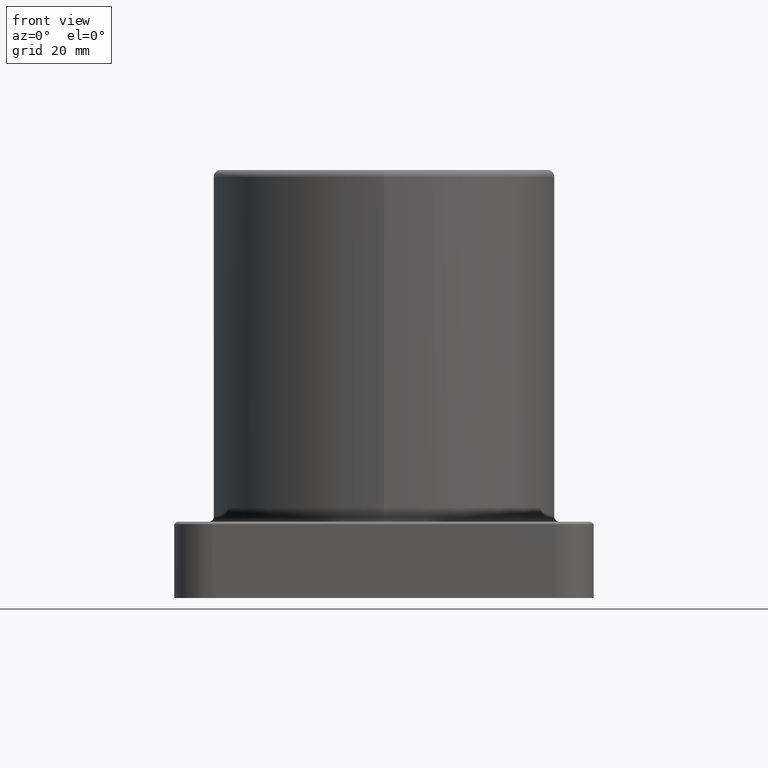
[diagram: clean part render]
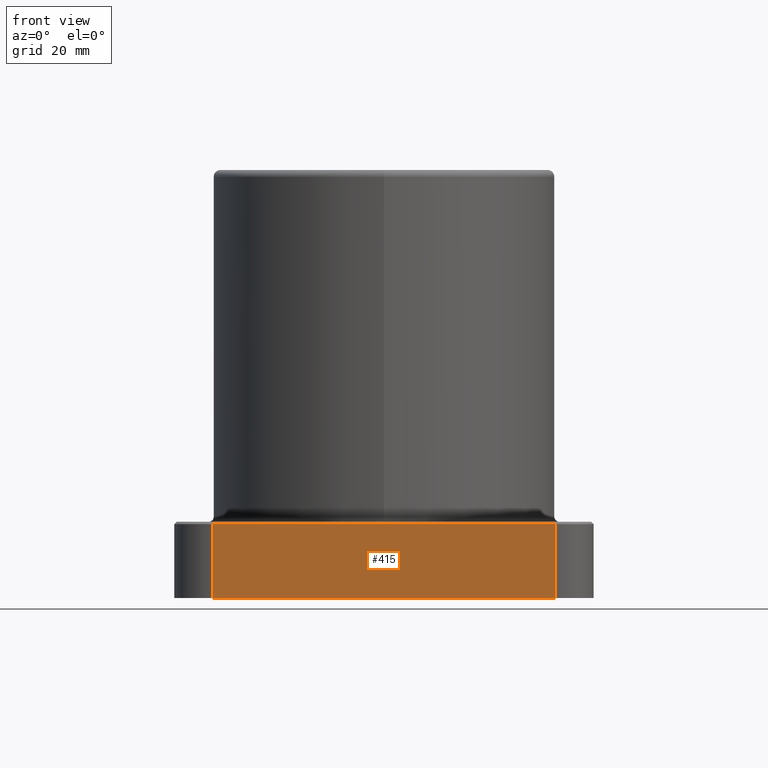
[diagram: same view with one face highlighted and labeled with its STEP entity id]
A machine part, front view. The second image highlights one B-rep face of the part: STEP entity #415.
In plain terms, the highlighted planar face has unit normal (0, -1, 0).
Its self-contained STEP definition (entity closure, byte-faithful):
#93 = VECTOR ( 'NONE', #7115, 39.37007874015748143 ) ;
#330 = CARTESIAN_POINT ( 'NONE',  ( 1.124999999999999778, -1.374999999999999778, 0.4849999999999992650 ) ) ;
#415 = ADVANCED_FACE ( 'NONE', ( #5124 ), #5040, .T. ) ;
#653 = EDGE_CURVE ( 'NONE', #6027, #5811, #4408, .T. ) ;
#738 = DIRECTION ( 'NONE',  ( 0.000000000000000000, -0.000000000000000000, -1.000000000000000000 ) ) ;
#1362 = CARTESIAN_POINT ( 'NONE',  ( -1.124999999999999778, -1.374999999999999778, -1.707404996040164512E-17 ) ) ;
#1433 = VECTOR ( 'NONE', #1678, 39.37007874015748143 ) ;
#1678 = DIRECTION ( 'NONE',  ( -0.000000000000000000, -0.000000000000000000, 1.000000000000000000 ) ) ;
#2062 = EDGE_CURVE ( 'NONE', #4928, #2612, #3935, .T. ) ;
#2527 = AXIS2_PLACEMENT_3D ( 'NONE', #7093, #7653, #738 ) ;
#2544 = DIRECTION ( 'NONE',  ( -0.000000000000000000, -0.000000000000000000, 1.000000000000000000 ) ) ;
#2565 = ORIENTED_EDGE ( 'NONE', *, *, #2062, .T. ) ;
#2612 = VERTEX_POINT ( 'NONE', #4187 ) ;
#2869 = CARTESIAN_POINT ( 'NONE',  ( 1.124999999999999778, -1.374999999999999778, -1.707404996040164512E-17 ) ) ;
#2943 = LINE ( 'NONE', #2869, #1433 ) ;
#3732 = ORIENTED_EDGE ( 'NONE', *, *, #4211, .T. ) ;
#3935 = LINE ( 'NONE', #1362, #93 ) ;
#4158 = DIRECTION ( 'NONE',  ( -1.000000000000000000, 0.000000000000000000, 0.000000000000000000 ) ) ;
#4187 = CARTESIAN_POINT ( 'NONE',  ( 1.124999999999999778, -1.374999999999999778, -1.707404996040164512E-17 ) ) ;
#4211 = EDGE_CURVE ( 'NONE', #2612, #6027, #2943, .T. ) ;
#4408 = LINE ( 'NONE', #7385, #6544 ) ;
#4481 = EDGE_LOOP ( 'NONE', ( #3732, #4882, #8007, #2565 ) ) ;
#4653 = EDGE_CURVE ( 'NONE', #4928, #5811, #5787, .T. ) ;
#4882 = ORIENTED_EDGE ( 'NONE', *, *, #653, .T. ) ;
#4928 = VERTEX_POINT ( 'NONE', #6842 ) ;
#5040 = PLANE ( 'NONE',  #2527 ) ;
#5124 = FACE_OUTER_BOUND ( 'NONE', #4481, .T. ) ;
#5226 = VECTOR ( 'NONE', #2544, 39.37007874015748143 ) ;
#5787 = LINE ( 'NONE', #7127, #5226 ) ;
#5811 = VERTEX_POINT ( 'NONE', #7246 ) ;
#6027 = VERTEX_POINT ( 'NONE', #330 ) ;
#6544 = VECTOR ( 'NONE', #4158, 39.37007874015748143 ) ;
#6842 = CARTESIAN_POINT ( 'NONE',  ( -1.124999999999999778, -1.374999999999999334, 1.707404996040164512E-17 ) ) ;
#7093 = CARTESIAN_POINT ( 'NONE',  ( -1.124999999999999778, -1.374999999999999778, -1.707404996040164512E-17 ) ) ;
#7115 = DIRECTION ( 'NONE',  ( 1.000000000000000000, 0.000000000000000000, 0.000000000000000000 ) ) ;
#7127 = CARTESIAN_POINT ( 'NONE',  ( -1.124999999999999778, -1.374999999999999778, -1.707404996040164512E-17 ) ) ;
#7246 = CARTESIAN_POINT ( 'NONE',  ( -1.124999999999999778, -1.374999999999999778, 0.4849999999999993205 ) ) ;
#7385 = CARTESIAN_POINT ( 'NONE',  ( -1.124999999999999778, -1.374999999999999778, 0.4849999999999992650 ) ) ;
#7653 = DIRECTION ( 'NONE',  ( 0.000000000000000000, -1.000000000000000000, 0.000000000000000000 ) ) ;
#8007 = ORIENTED_EDGE ( 'NONE', *, *, #4653, .F. ) ;